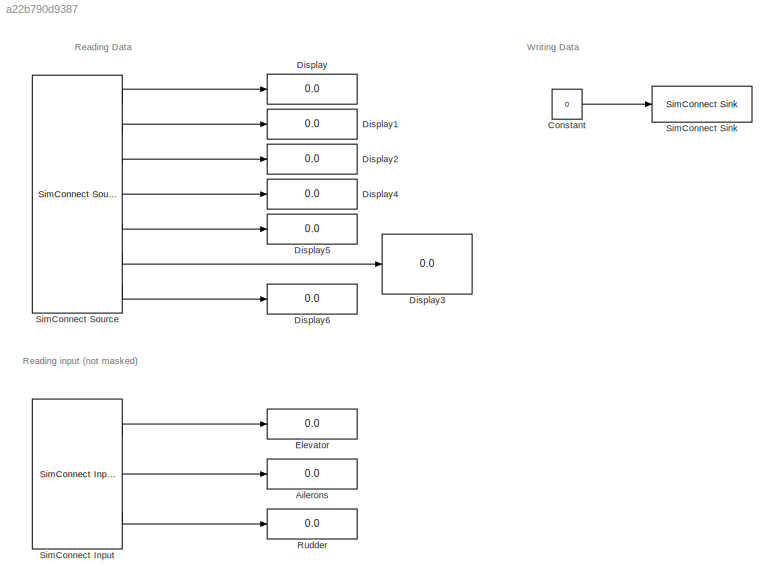
MODEL slx_a22b790d9387
KIND model
CONFIG AbsTol = auto
CONFIG EnableMultiTasking = off
CONFIG FixedStep = 0.03
CONFIG MaxStep = auto
CONFIG MinStep = auto
CONFIG RelTol = 1e-3
CONFIG SampleTimeConstraint = Unconstrained
CONFIG SolverName = FixedStepDiscrete
CONFIG StartTime = 0.0
CONFIG StopTime = inf
BLOCK [Display] Ailerons
  Decimation = 1
  Ports = [1]
BLOCK [Constant] Constant
  Value = 0
BLOCK [Display] Display
  Decimation = 1
  Ports = [1]
BLOCK [Display] Display1
  Decimation = 1
  Ports = [1]
BLOCK [Display] Display2
  Decimation = 1
  Ports = [1]
BLOCK [Display] Display3
  Decimation = 1
  Ports = [1]
BLOCK [Display] Display4
  Decimation = 1
  Ports = [1]
BLOCK [Display] Display5
  Decimation = 1
  Ports = [1]
BLOCK [Display] Display6
  Decimation = 1
  Ports = [1]
BLOCK [Display] Elevator
  Decimation = 1
  Ports = [1]
BLOCK [Display] Rudder
  Decimation = 1
  Ports = [1]
BLOCK [Reference] SimConnect Input  REF=SimConnectToolbox/SimConnect Input
  Ports = [0, 3]
  SourceBlock = SimConnectToolbox/SimConnect Input
  SourceProductName = SimConnect Toolbox
BLOCK [Reference] SimConnect Sink  REF=SimConnectToolbox/SimConnect Sink
  Ports = [1]
  SourceBlock = SimConnectToolbox/SimConnect Sink
  SourceProductName = SimConnect Toolbox
BLOCK [Reference] SimConnect Source  REF=SimConnectToolbox/SimConnect Source
  Ports = [0, 7]
  SourceBlock = SimConnectToolbox/SimConnect Source
  SourceProductName = SimConnect Toolbox
ANNOTATION (root): Reading Data
ANNOTATION (root): Reading input (not masked)
ANNOTATION (root): Writing Data
LINE Constant:1 -> SimConnect Sink:1
LINE SimConnect Input:1 -> Elevator:1
LINE SimConnect Input:2 -> Ailerons:1
LINE SimConnect Input:3 -> Rudder:1
LINE SimConnect Source:1 -> Display:1
LINE SimConnect Source:2 -> Display1:1
LINE SimConnect Source:3 -> Display2:1
LINE SimConnect Source:4 -> Display4:1
LINE SimConnect Source:5 -> Display5:1
LINE SimConnect Source:6 -> Display3:1
LINE SimConnect Source:7 -> Display6:1
